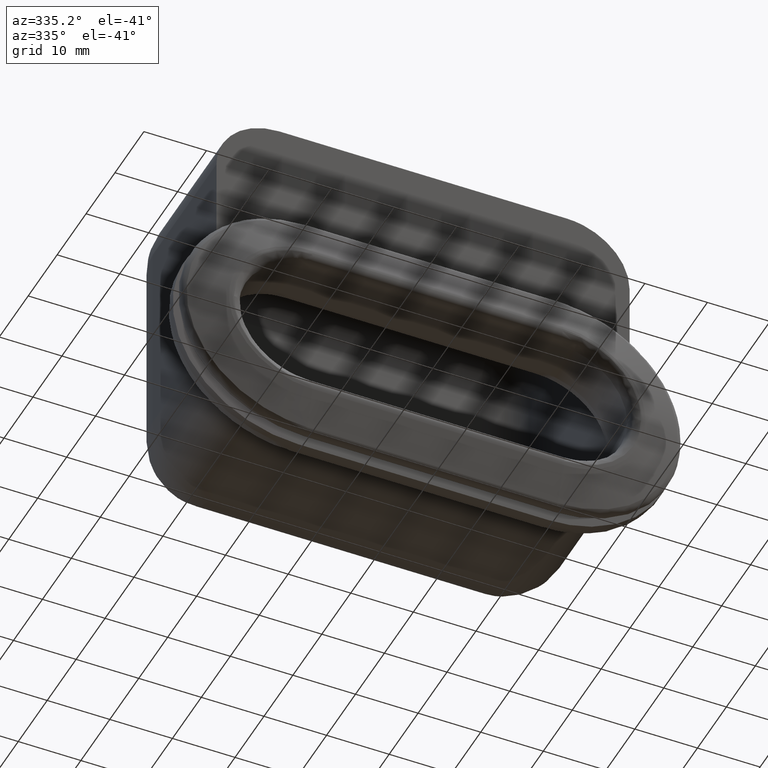
[diagram: clean part render]
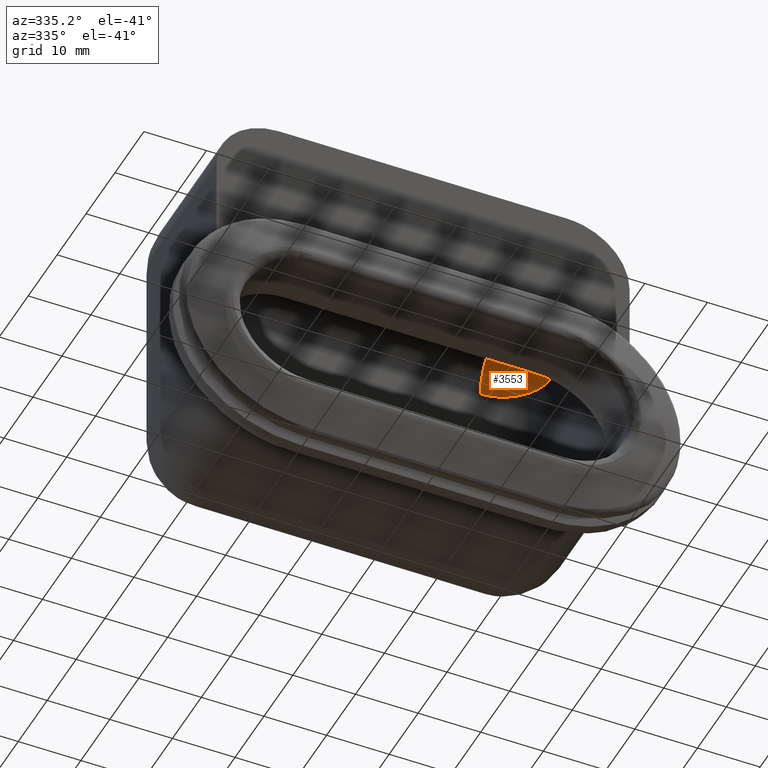
[diagram: same view with one face highlighted and labeled with its STEP entity id]
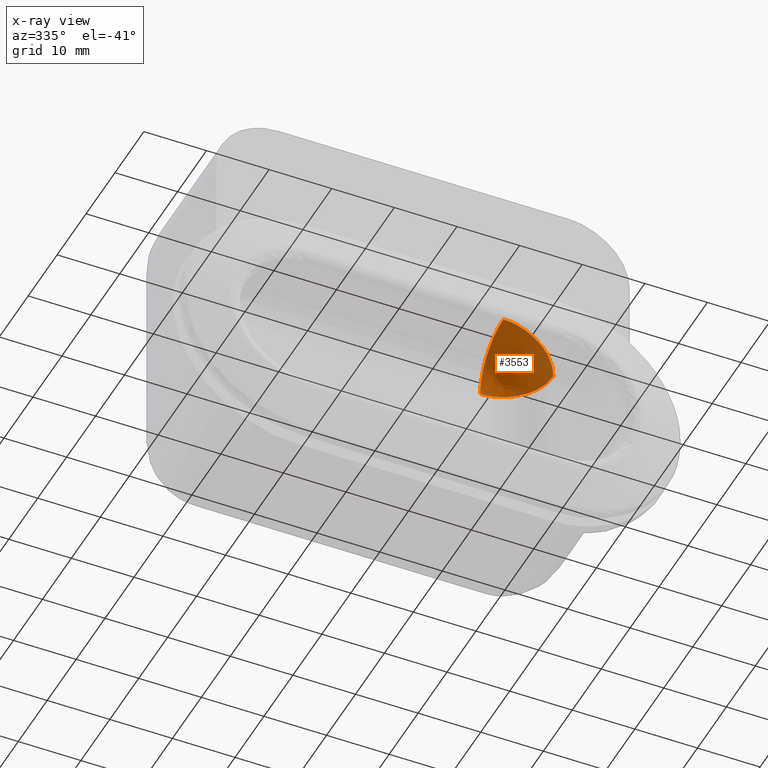
[diagram: x-ray of the same camera — body ghosted, the highlighted face saturated]
A machine part, auxiliary view. The second image highlights one B-rep face of the part: STEP entity #3553.
The next image is the same camera in x-ray: the body ghosted, the highlighted face saturated — about 56% of this face is hidden behind the body in this view.
In plain terms, the highlighted face is a freeform B-spline surface patch.
Its self-contained STEP definition (entity closure, byte-faithful):
#3422=CARTESIAN_POINT('',(23.0,35.0,29.0));
#3423=VERTEX_POINT('',#3422);
#3430=CARTESIAN_POINT('',(31.0,27.0,29.0));
#3431=VERTEX_POINT('',#3430);
#3437=CARTESIAN_POINT('',(31.0,27.0,29.0));
#3438=CARTESIAN_POINT('',(31.000000000000007,34.999999999999993,29.0));
#3439=CARTESIAN_POINT('',(23.0,35.0,29.0));
#3447=(BOUNDED_CURVE()B_SPLINE_CURVE(2,(#3437,#3438,#3439),.UNSPECIFIED.,.F.,.U.)CURVE()GEOMETRIC_REPRESENTATION_ITEM()QUASI_UNIFORM_CURVE()RATIONAL_B_SPLINE_CURVE((1.0,0.707106781186548,1.0))REPRESENTATION_ITEM(''));
#3448=EDGE_CURVE('',#3431,#3423,#3447,.T.);
#3498=CARTESIAN_POINT('',(21.566714396121604,26.822878577343289,36.868565331707615));
#3499=CARTESIAN_POINT('',(23.346322243021408,26.461995379149208,37.184603396742517));
#3500=CARTESIAN_POINT('',(28.131069068092035,24.206445097228315,35.589688071867201));
#3501=CARTESIAN_POINT('',(28.586175903741502,22.401550270355582,32.413048323184285));
#3502=CARTESIAN_POINT('',(22.377401748518022,31.032896900528186,37.111002277431659));
#3503=CARTESIAN_POINT('',(24.851151378647231,30.952063855253481,37.559784529293658));
#3504=CARTESIAN_POINT('',(31.292523689142691,27.915573177257990,35.412660807426711));
#3505=CARTESIAN_POINT('',(30.984541525069623,24.630240906632622,31.490362767581619));
#3506=CARTESIAN_POINT('',(22.377401748518022,35.122914752694761,31.326845102669420));
#3507=CARTESIAN_POINT('',(24.851151378647231,35.435536737766768,31.219198062781359));
#3508=CARTESIAN_POINT('',(31.292523689142691,32.399046059771280,29.072074340914408));
#3509=CARTESIAN_POINT('',(30.984541525069623,27.870048483304455,26.908584174725668));
#3510=CARTESIAN_POINT('',(21.980100796552588,34.923202490064348,28.572603326820051));
#3511=CARTESIAN_POINT('',(24.105079650611678,35.179200112361187,28.247511320064444));
#3512=CARTESIAN_POINT('',(29.725121878270450,32.529887976433088,26.374164243815109));
#3513=CARTESIAN_POINT('',(29.839808081481078,28.400661598167066,25.094212947954496));
#3521=(BOUNDED_SURFACE()B_SPLINE_SURFACE(2,2,((#3498,#3502,#3506,#3510),(#3499,#3503,#3507,#3511),(#3500,#3504,#3508,#3512),(#3501,#3505,#3509,#3513)),.UNSPECIFIED.,.F.,.F.,.U.)B_SPLINE_SURFACE_WITH_KNOTS((3,1,3),(3,1,3),(0.0,4.679066925260734,14.025942446444111),(0.0,8.876811452896217,14.643989818580840),.UNSPECIFIED.)GEOMETRIC_REPRESENTATION_ITEM()RATIONAL_B_SPLINE_SURFACE(((1.442429395790684,1.096198854031478,1.096198854031478,1.242341898792701),(1.346230541759206,1.0,1.0,1.146143044761223),(1.346230541759206,1.0,1.0,1.146143044761223),(1.730100656390838,1.383870114631632,1.383870114631632,1.530013159392855)))REPRESENTATION_ITEM('')SURFACE());
#3522=CARTESIAN_POINT('',(23.0,27.0,37.0));
#3523=VERTEX_POINT('',#3522);
#3524=CARTESIAN_POINT('',(31.0,27.0,29.0));
#3525=CARTESIAN_POINT('',(31.000000000000007,27.000000000000011,37.0));
#3526=CARTESIAN_POINT('',(23.0,27.0,37.000000000000007));
#3534=(BOUNDED_CURVE()B_SPLINE_CURVE(2,(#3524,#3525,#3526),.UNSPECIFIED.,.F.,.U.)CURVE()GEOMETRIC_REPRESENTATION_ITEM()QUASI_UNIFORM_CURVE()RATIONAL_B_SPLINE_CURVE((1.0,0.707106781186548,1.0))REPRESENTATION_ITEM(''));
#3535=EDGE_CURVE('',#3431,#3523,#3534,.T.);
#3536=ORIENTED_EDGE('',*,*,#3535,.T.);
#3537=CARTESIAN_POINT('',(23.0,27.0,37.000000000000007));
#3538=CARTESIAN_POINT('',(22.999999999999993,34.999999999999993,37.0));
#3539=CARTESIAN_POINT('',(23.0,35.0,29.0));
#3547=(BOUNDED_CURVE()B_SPLINE_CURVE(2,(#3537,#3538,#3539),.UNSPECIFIED.,.F.,.U.)CURVE()GEOMETRIC_REPRESENTATION_ITEM()QUASI_UNIFORM_CURVE()RATIONAL_B_SPLINE_CURVE((1.0,0.707106781186548,1.0))REPRESENTATION_ITEM(''));
#3548=EDGE_CURVE('',#3523,#3423,#3547,.T.);
#3549=ORIENTED_EDGE('',*,*,#3548,.T.);
#3550=ORIENTED_EDGE('',*,*,#3448,.F.);
#3551=EDGE_LOOP('',(#3536,#3549,#3550));
#3552=FACE_OUTER_BOUND('',#3551,.T.);
#3553=ADVANCED_FACE('',(#3552),#3521,.F.);